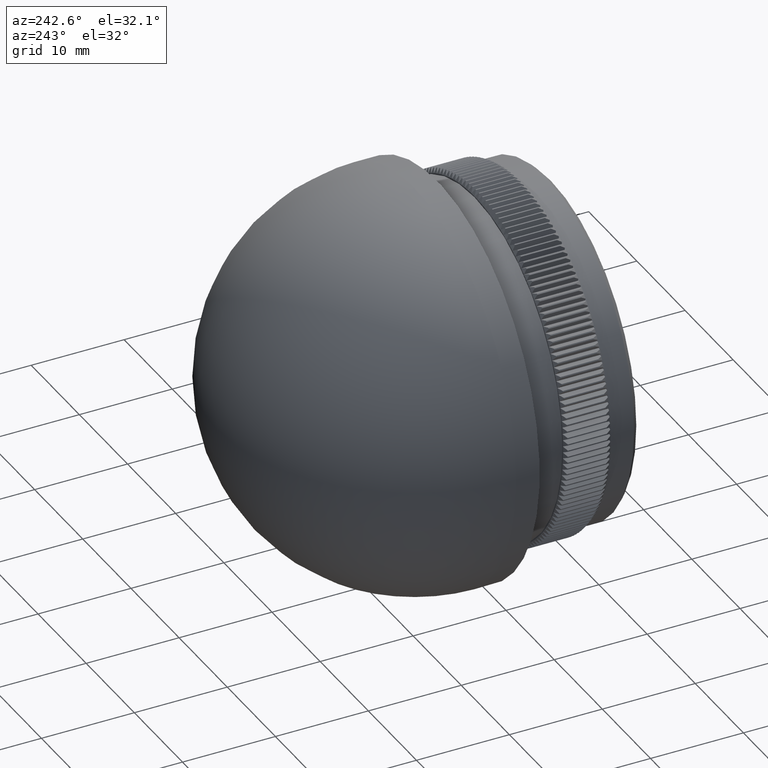
[diagram: clean part render]
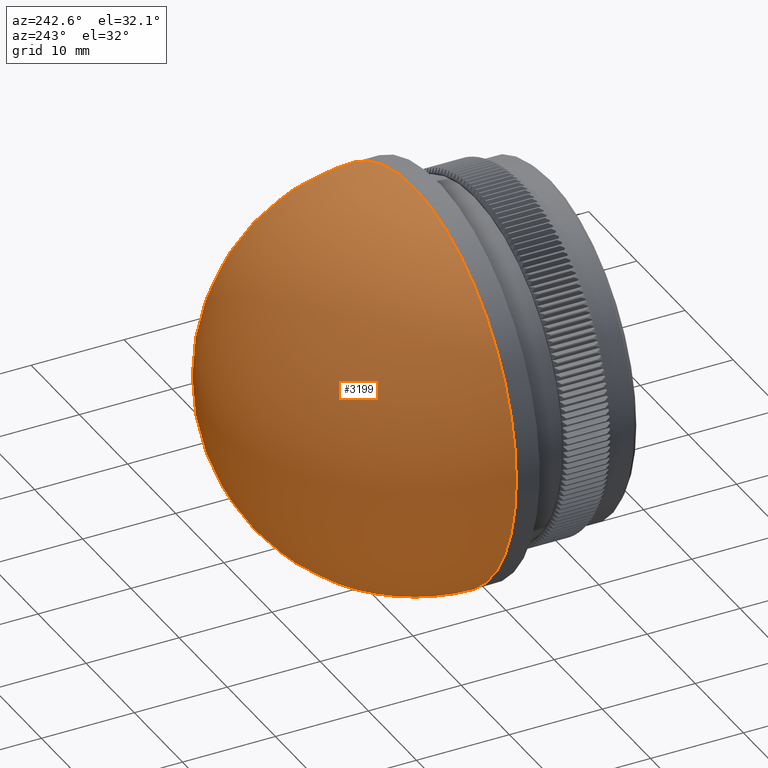
[diagram: same view with one face highlighted and labeled with its STEP entity id]
A machine part, auxiliary view. The second image highlights one B-rep face of the part: STEP entity #3199.
In plain terms, the highlighted spherical surface has radius 21.2 mm.
Its self-contained STEP definition (entity closure, byte-faithful):
#1689 = ORIENTED_EDGE ( 'NONE', *, *, #8681, .F. ) ;
#3199 = ADVANCED_FACE ( 'NONE', ( #6980 ), #3629, .T. ) ;
#3629 = SPHERICAL_SURFACE ( 'NONE', #21025, 21.19999999999999574 ) ;
#3683 = DIRECTION ( 'NONE',  ( -4.511395019478391376E-16, -1.000000000000000000, -0.000000000000000000 ) ) ;
#6980 = FACE_OUTER_BOUND ( 'NONE', #20221, .T. ) ;
#8093 = CIRCLE ( 'NONE', #14950, 21.19999999999999929 ) ;
#8681 = EDGE_CURVE ( 'NONE', #14575, #14575, #8093, .T. ) ;
#10667 = DIRECTION ( 'NONE',  ( 1.000000000000000000, -4.909594743330587214E-16, 0.000000000000000000 ) ) ;
#14575 = VERTEX_POINT ( 'NONE', #27930 ) ;
#14950 = AXIS2_PLACEMENT_3D ( 'NONE', #24991, #3683, #18652 ) ;
#16601 = CARTESIAN_POINT ( 'NONE',  ( -1.800230794746609123E-15, 14.69999999999999929, 0.000000000000000000 ) ) ;
#18652 = DIRECTION ( 'NONE',  ( 1.000000000000000000, -4.909594743330586228E-16, 0.000000000000000000 ) ) ;
#20221 = EDGE_LOOP ( 'NONE', ( #1689 ) ) ;
#21025 = AXIS2_PLACEMENT_3D ( 'NONE', #16601, #32324, #10667 ) ;
#24991 = CARTESIAN_POINT ( 'NONE',  ( -7.894941284087175343E-15, 14.70000000000001172, 0.000000000000000000 ) ) ;
#27930 = CARTESIAN_POINT ( 'NONE',  ( 21.19999999999999218, 14.70000000000000107, 0.000000000000000000 ) ) ;
#32324 = DIRECTION ( 'NONE',  ( -0.000000000000000000, 0.000000000000000000, 1.000000000000000000 ) ) ;